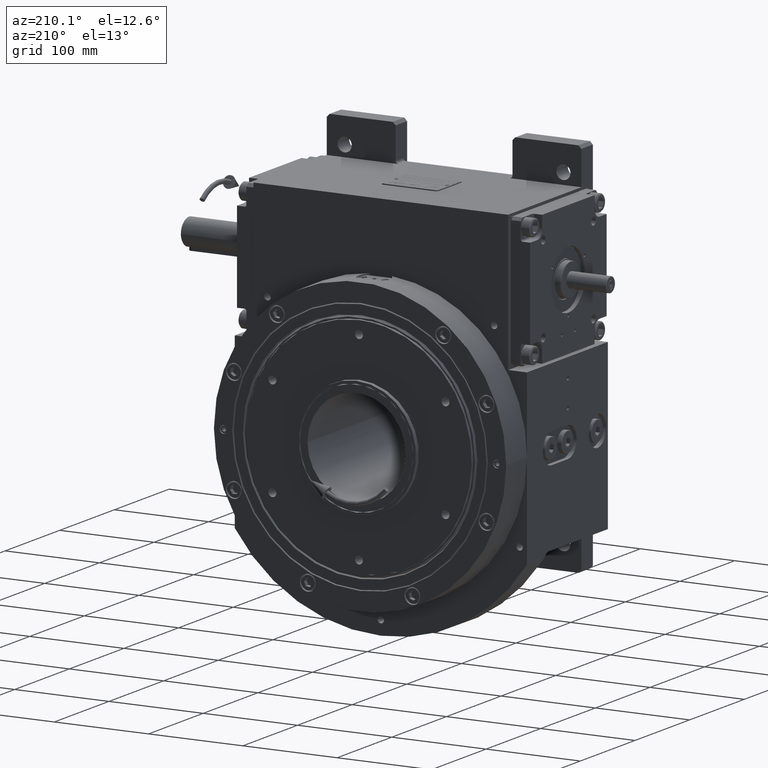
[diagram: clean part render]
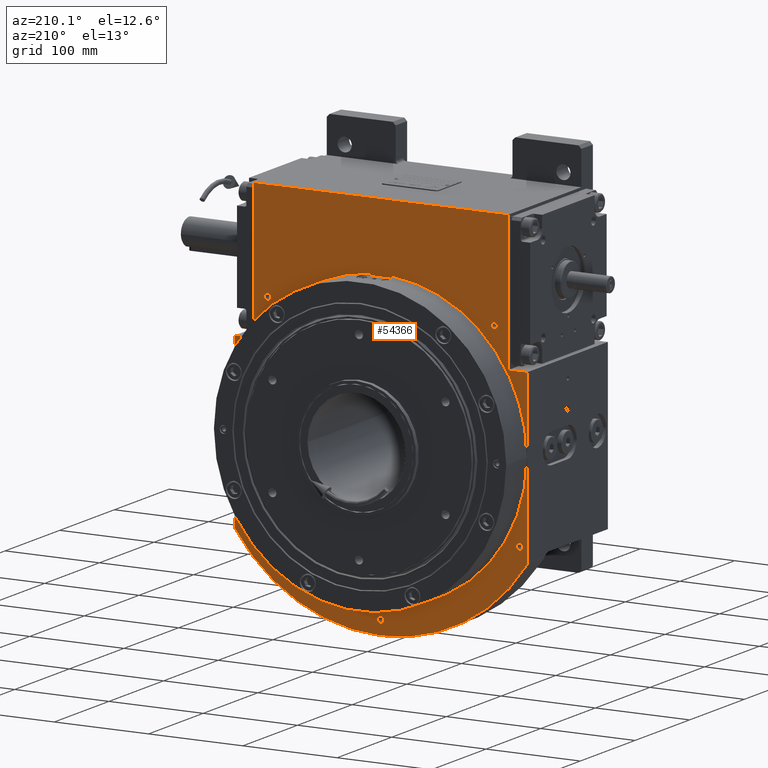
[diagram: same view with one face highlighted and labeled with its STEP entity id]
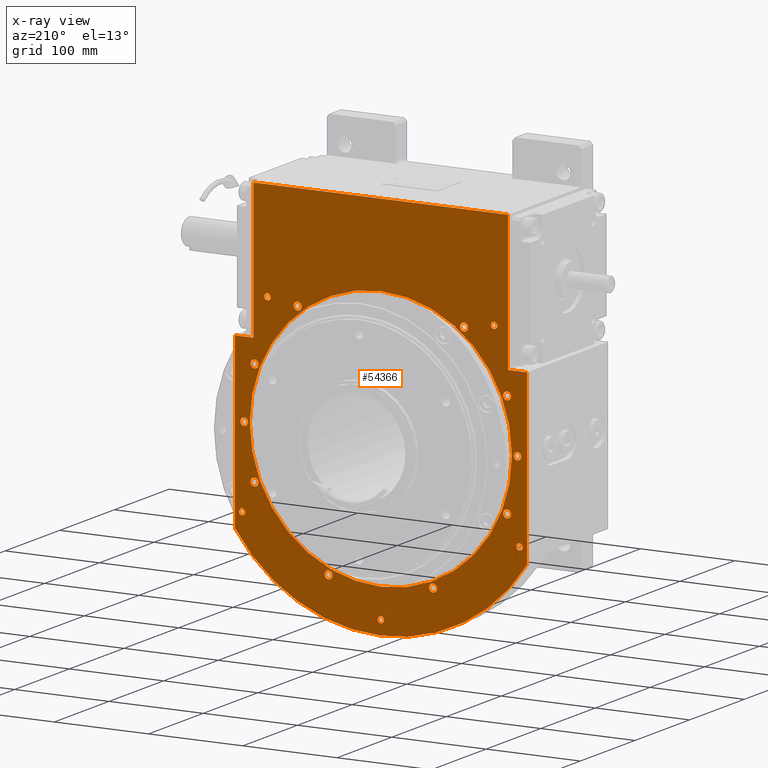
[diagram: x-ray of the same camera — body ghosted, the highlighted face saturated]
A machine part, auxiliary view. The second image highlights one B-rep face of the part: STEP entity #54366.
The next image is the same camera in x-ray: the body ghosted, the highlighted face saturated — about 0% of this face is hidden behind the body in this view.
In plain terms, the highlighted planar face has unit normal (0, 1, 0).
Its self-contained STEP definition (entity closure, byte-faithful):
#169 = DIRECTION ( 'NONE',  ( 0.000000000000000000, 1.000000000000000000, 0.000000000000000000 ) ) ;
#229 = VERTEX_POINT ( 'NONE', #6457 ) ;
#339 = VERTEX_POINT ( 'NONE', #39616 ) ;
#519 = DIRECTION ( 'NONE',  ( 0.000000000000000000, 1.000000000000000000, 0.000000000000000000 ) ) ;
#549 = ORIENTED_EDGE ( 'NONE', *, *, #27029, .F. ) ;
#557 = CARTESIAN_POINT ( 'NONE',  ( 120.2081528016999954, 75.00000000000000000, 120.2081528016999954 ) ) ;
#601 = CIRCLE ( 'NONE', #40042, 3.400000000000000355 ) ;
#894 = EDGE_LOOP ( 'NONE', ( #55276, #8784, #64744, #3092, #40445, #50126, #20085, #43939 ) ) ;
#942 = DIRECTION ( 'NONE',  ( 1.000000000000000000, 0.000000000000000000, 0.000000000000000000 ) ) ;
#1047 = VERTEX_POINT ( 'NONE', #5918 ) ;
#1056 = CARTESIAN_POINT ( 'NONE',  ( -123.6081528017000011, 75.00000000000000000, 120.2081528016999954 ) ) ;
#1286 = VERTEX_POINT ( 'NONE', #49334 ) ;
#1569 = EDGE_CURVE ( 'NONE', #41157, #9382, #41211, .T. ) ;
#1776 = DIRECTION ( 'NONE',  ( 0.000000000000000000, 1.000000000000000000, 0.000000000000000000 ) ) ;
#2160 = AXIS2_PLACEMENT_3D ( 'NONE', #57340, #169, #59419 ) ;
#2404 = CIRCLE ( 'NONE', #24963, 139.0000000000000000 ) ;
#2480 = AXIS2_PLACEMENT_3D ( 'NONE', #17804, #45642, #28410 ) ;
#2782 = VERTEX_POINT ( 'NONE', #13228 ) ;
#2892 = DIRECTION ( 'NONE',  ( 0.000000000000000000, 1.000000000000000000, 0.000000000000000000 ) ) ;
#3092 = ORIENTED_EDGE ( 'NONE', *, *, #64364, .T. ) ;
#3110 = EDGE_CURVE ( 'NONE', #5007, #55663, #6441, .T. ) ;
#3144 = CARTESIAN_POINT ( 'NONE',  ( -138.2125322140999799, 75.00000000000000000, -55.48909769294000682 ) ) ;
#3340 = CARTESIAN_POINT ( 'NONE',  ( 145.0000000000000000, 75.00000000000000000, -3.999999999999992450 ) ) ;
#3414 = EDGE_LOOP ( 'NONE', ( #57257, #13806 ) ) ;
#3510 = CARTESIAN_POINT ( 'NONE',  ( 143.8243186434000052, 75.00000000000000000, -85.00000000000000000 ) ) ;
#3854 = FACE_BOUND ( 'NONE', #29419, .T. ) ;
#3929 = DIRECTION ( 'NONE',  ( 0.000000000000000000, 1.000000000000000000, 0.000000000000000000 ) ) ;
#4145 = CARTESIAN_POINT ( 'NONE',  ( 155.0000000000000000, 75.00000000000000000, -100.9950493836000049 ) ) ;
#4486 = EDGE_CURVE ( 'NONE', #17450, #1286, #25620, .T. ) ;
#4567 = DIRECTION ( 'NONE',  ( 1.000000000000000000, 0.000000000000000000, 0.000000000000000000 ) ) ;
#4591 = AXIS2_PLACEMENT_3D ( 'NONE', #32025, #16843, #21455 ) ;
#4647 = DIRECTION ( 'NONE',  ( -1.000000000000000000, 0.000000000000000000, 0.000000000000000000 ) ) ;
#5007 = VERTEX_POINT ( 'NONE', #55927 ) ;
#5167 = AXIS2_PLACEMENT_3D ( 'NONE', #557, #22112, #17161 ) ;
#5509 = AXIS2_PLACEMENT_3D ( 'NONE', #63689, #519, #22079 ) ;
#5762 = LINE ( 'NONE', #55169, #46938 ) ;
#5845 = AXIS2_PLACEMENT_3D ( 'NONE', #54859, #49913, #42888 ) ;
#5880 = CARTESIAN_POINT ( 'NONE',  ( 133.9625322141000083, 75.00000000000000000, 55.48909769294000682 ) ) ;
#5918 = CARTESIAN_POINT ( 'NONE',  ( -3.399999999999999911, 75.00000000000000000, -170.0000000000000000 ) ) ;
#5958 = ORIENTED_EDGE ( 'NONE', *, *, #20937, .F. ) ;
#5967 = ORIENTED_EDGE ( 'NONE', *, *, #42461, .F. ) ;
#5994 = CARTESIAN_POINT ( 'NONE',  ( -135.0000000000000000, 75.00000000000000000, 226.0000000000000000 ) ) ;
#6441 = CIRCLE ( 'NONE', #7551, 4.250000000000003553 ) ;
#6457 = CARTESIAN_POINT ( 'NONE',  ( 84.02040720626000336, 75.00000000000000000, 115.0362343421999896 ) ) ;
#6573 = VERTEX_POINT ( 'NONE', #60400 ) ;
#7053 = CARTESIAN_POINT ( 'NONE',  ( -133.9625322141000083, 75.00000000000000000, 55.48909769294000682 ) ) ;
#7284 = VERTEX_POINT ( 'NONE', #10900 ) ;
#7383 = CIRCLE ( 'NONE', #5167, 3.400000000000000355 ) ;
#7551 = AXIS2_PLACEMENT_3D ( 'NONE', #7053, #1776, #23335 ) ;
#7700 = DIRECTION ( 'NONE',  ( 0.000000000000000000, 1.000000000000000000, 0.000000000000000000 ) ) ;
#7832 = AXIS2_PLACEMENT_3D ( 'NONE', #37570, #32623, #16752 ) ;
#7991 = DIRECTION ( 'NONE',  ( 1.000000000000000000, 0.000000000000000000, 0.000000000000000000 ) ) ;
#8227 = ORIENTED_EDGE ( 'NONE', *, *, #22222, .F. ) ;
#8347 = CARTESIAN_POINT ( 'NONE',  ( 155.0000000000000000, 75.00000000000000000, 80.00000000000000000 ) ) ;
#8525 = AXIS2_PLACEMENT_3D ( 'NONE', #69021, #20726, #42223 ) ;
#8580 = CIRCLE ( 'NONE', #26598, 185.0000000000000000 ) ;
#8784 = ORIENTED_EDGE ( 'NONE', *, *, #27801, .T. ) ;
#8971 = CIRCLE ( 'NONE', #25910, 4.249999999999996447 ) ;
#9130 = DIRECTION ( 'NONE',  ( 1.000000000000000000, 0.000000000000000000, 0.000000000000000000 ) ) ;
#9382 = VERTEX_POINT ( 'NONE', #47440 ) ;
#9511 = DIRECTION ( 'NONE',  ( 1.000000000000000000, 0.000000000000000000, 0.000000000000000000 ) ) ;
#9529 = AXIS2_PLACEMENT_3D ( 'NONE', #31440, #36379, #19842 ) ;
#9569 = EDGE_CURVE ( 'NONE', #2782, #41176, #11781, .T. ) ;
#9732 = ORIENTED_EDGE ( 'NONE', *, *, #21274, .F. ) ;
#10166 = ORIENTED_EDGE ( 'NONE', *, *, #65366, .F. ) ;
#10532 = CARTESIAN_POINT ( 'NONE',  ( 138.2125322140999799, 75.00000000000000000, -55.48909769294000682 ) ) ;
#10575 = EDGE_LOOP ( 'NONE', ( #52198, #18833 ) ) ;
#10652 = EDGE_CURVE ( 'NONE', #41176, #60439, #38483, .T. ) ;
#10900 = CARTESIAN_POINT ( 'NONE',  ( -129.7125322141000083, 75.00000000000000000, -55.48909769294000682 ) ) ;
#11033 = CARTESIAN_POINT ( 'NONE',  ( 1.702259050814821084E-14, 75.00000000000000000, -139.0000000000000000 ) ) ;
#11062 = VECTOR ( 'NONE', #58583, 1000.000000000000000 ) ;
#11128 = EDGE_CURVE ( 'NONE', #49337, #65194, #7383, .T. ) ;
#11180 = ORIENTED_EDGE ( 'NONE', *, *, #32130, .F. ) ;
#11206 = AXIS2_PLACEMENT_3D ( 'NONE', #14805, #36327, #9511 ) ;
#11781 = LINE ( 'NONE', #22752, #32947 ) ;
#12055 = DIRECTION ( 'NONE',  ( 1.000000000000000000, 0.000000000000000000, 0.000000000000000000 ) ) ;
#12202 = EDGE_LOOP ( 'NONE', ( #8227, #32689 ) ) ;
#12414 = EDGE_CURVE ( 'NONE', #23166, #23541, #67076, .T. ) ;
#12592 = ORIENTED_EDGE ( 'NONE', *, *, #45523, .F. ) ;
#12624 = AXIS2_PLACEMENT_3D ( 'NONE', #35174, #45065, #7991 ) ;
#13054 = DIRECTION ( 'NONE',  ( 0.000000000000000000, 1.000000000000000000, 0.000000000000000000 ) ) ;
#13228 = CARTESIAN_POINT ( 'NONE',  ( -135.0000000000000000, 75.00000000000000000, 80.00000000000000000 ) ) ;
#13660 = DIRECTION ( 'NONE',  ( 0.8378378378378310565, 0.000000000000000000, -0.5459191858574200529 ) ) ;
#13765 = FACE_BOUND ( 'NONE', #36674, .T. ) ;
#13806 = ORIENTED_EDGE ( 'NONE', *, *, #12414, .F. ) ;
#13824 = VERTEX_POINT ( 'NONE', #56920 ) ;
#14459 = VERTEX_POINT ( 'NONE', #25477 ) ;
#14549 = CIRCLE ( 'NONE', #2160, 4.250000000000003553 ) ;
#14665 = CIRCLE ( 'NONE', #7832, 3.999999999999992450 ) ;
#14805 = CARTESIAN_POINT ( 'NONE',  ( 0.000000000000000000, 75.00000000000000000, 0.000000000000000000 ) ) ;
#14896 = CIRCLE ( 'NONE', #5845, 3.399999999999999911 ) ;
#15257 = CARTESIAN_POINT ( 'NONE',  ( 133.9625322141000083, 75.00000000000000000, -55.48909769294000682 ) ) ;
#15273 = CARTESIAN_POINT ( 'NONE',  ( -147.2243186433999824, 75.00000000000000000, -85.00000000000000000 ) ) ;
#15282 = EDGE_CURVE ( 'NONE', #65194, #49337, #601, .T. ) ;
#15394 = CARTESIAN_POINT ( 'NONE',  ( -133.9625322141000083, 75.00000000000000000, -55.48909769294000682 ) ) ;
#15881 = CARTESIAN_POINT ( 'NONE',  ( 88.27040720626000336, 75.00000000000000000, 115.0362343421999896 ) ) ;
#16438 = CARTESIAN_POINT ( 'NONE',  ( 145.0000000000000000, 75.00000000000000000, 3.999999999999992450 ) ) ;
#16571 = DIRECTION ( 'NONE',  ( 0.000000000000000000, 1.000000000000000000, 0.000000000000000000 ) ) ;
#16752 = DIRECTION ( 'NONE',  ( 0.000000000000000000, 0.000000000000000000, 1.000000000000000000 ) ) ;
#16843 = DIRECTION ( 'NONE',  ( 0.000000000000000000, 1.000000000000000000, 0.000000000000000000 ) ) ;
#16861 = DIRECTION ( 'NONE',  ( -1.000000000000000000, 0.000000000000000000, 0.000000000000000000 ) ) ;
#16871 = CIRCLE ( 'NONE', #4591, 3.399999999999986144 ) ;
#17142 = EDGE_CURVE ( 'NONE', #23541, #23166, #55836, .T. ) ;
#17161 = DIRECTION ( 'NONE',  ( -1.000000000000000000, 0.000000000000000000, 0.000000000000000000 ) ) ;
#17263 = AXIS2_PLACEMENT_3D ( 'NONE', #5880, #65866, #16861 ) ;
#17314 = DIRECTION ( 'NONE',  ( -1.000000000000000000, 0.000000000000000000, 0.000000000000000000 ) ) ;
#17450 = VERTEX_POINT ( 'NONE', #3510 ) ;
#17514 = CARTESIAN_POINT ( 'NONE',  ( -155.0000000000000000, 75.00000000000000000, -100.9950493836000049 ) ) ;
#17695 = VERTEX_POINT ( 'NONE', #23263 ) ;
#17804 = CARTESIAN_POINT ( 'NONE',  ( -147.2243186433999824, 75.00000000000000000, -85.00000000000000000 ) ) ;
#18833 = ORIENTED_EDGE ( 'NONE', *, *, #26561, .F. ) ;
#18866 = DIRECTION ( 'NONE',  ( 0.000000000000000000, 1.000000000000000000, 0.000000000000000000 ) ) ;
#19075 = FACE_BOUND ( 'NONE', #3414, .T. ) ;
#19225 = CARTESIAN_POINT ( 'NONE',  ( -55.48909769294000682, 75.00000000000000000, -133.9625322141000083 ) ) ;
#19310 = EDGE_LOOP ( 'NONE', ( #38912, #69557 ) ) ;
#19485 = CARTESIAN_POINT ( 'NONE',  ( -133.9625322141000083, 75.00000000000000000, -55.48909769294000682 ) ) ;
#19652 = EDGE_LOOP ( 'NONE', ( #549, #10166 ) ) ;
#19842 = DIRECTION ( 'NONE',  ( -1.000000000000000000, 0.000000000000000000, 0.000000000000000000 ) ) ;
#20085 = ORIENTED_EDGE ( 'NONE', *, *, #10652, .T. ) ;
#20091 = LINE ( 'NONE', #68042, #58483 ) ;
#20121 = FACE_OUTER_BOUND ( 'NONE', #894, .T. ) ;
#20162 = AXIS2_PLACEMENT_3D ( 'NONE', #39920, #34649, #56136 ) ;
#20458 = FACE_BOUND ( 'NONE', #19310, .T. ) ;
#20594 = DIRECTION ( 'NONE',  ( 0.000000000000000000, 1.000000000000000000, 0.000000000000000000 ) ) ;
#20670 = DIRECTION ( 'NONE',  ( 0.000000000000000000, 1.000000000000000000, 0.000000000000000000 ) ) ;
#20726 = DIRECTION ( 'NONE',  ( 0.000000000000000000, 1.000000000000000000, 0.000000000000000000 ) ) ;
#20893 = CARTESIAN_POINT ( 'NONE',  ( -145.0000000000000000, 75.00000000000000000, 0.000000000000000000 ) ) ;
#20911 = DIRECTION ( 'NONE',  ( 1.000000000000000000, 0.000000000000000000, 0.000000000000000000 ) ) ;
#20937 = EDGE_CURVE ( 'NONE', #1047, #29810, #57334, .T. ) ;
#20953 = CARTESIAN_POINT ( 'NONE',  ( -133.9625322141000083, 75.00000000000000000, 55.48909769294000682 ) ) ;
#21274 = EDGE_CURVE ( 'NONE', #57378, #27210, #8971, .T. ) ;
#21318 = ORIENTED_EDGE ( 'NONE', *, *, #57725, .F. ) ;
#21455 = DIRECTION ( 'NONE',  ( 1.000000000000000000, 0.000000000000000000, 0.000000000000000000 ) ) ;
#21756 = AXIS2_PLACEMENT_3D ( 'NONE', #15881, #69120, #21871 ) ;
#21871 = DIRECTION ( 'NONE',  ( 1.000000000000000000, 0.000000000000000000, 0.000000000000000000 ) ) ;
#21873 = VERTEX_POINT ( 'NONE', #4145 ) ;
#22079 = DIRECTION ( 'NONE',  ( -1.000000000000000000, 0.000000000000000000, 0.000000000000000000 ) ) ;
#22112 = DIRECTION ( 'NONE',  ( 0.000000000000000000, 1.000000000000000000, 0.000000000000000000 ) ) ;
#22222 = EDGE_CURVE ( 'NONE', #22521, #45093, #57282, .T. ) ;
#22521 = VERTEX_POINT ( 'NONE', #1056 ) ;
#22589 = DIRECTION ( 'NONE',  ( 0.000000000000000000, 0.000000000000000000, 1.000000000000000000 ) ) ;
#22739 = EDGE_CURVE ( 'NONE', #17695, #6573, #20091, .T. ) ;
#22752 = CARTESIAN_POINT ( 'NONE',  ( -135.0000000000000000, 75.00000000000000000, 80.00000000000000000 ) ) ;
#22770 = VERTEX_POINT ( 'NONE', #3144 ) ;
#22930 = AXIS2_PLACEMENT_3D ( 'NONE', #33893, #13054, #17314 ) ;
#23100 = VERTEX_POINT ( 'NONE', #55976 ) ;
#23166 = VERTEX_POINT ( 'NONE', #33798 ) ;
#23263 = CARTESIAN_POINT ( 'NONE',  ( 135.0000000000000000, 75.00000000000000000, 80.00000000000000000 ) ) ;
#23335 = DIRECTION ( 'NONE',  ( -1.000000000000000000, 0.000000000000000000, 0.000000000000000000 ) ) ;
#23541 = VERTEX_POINT ( 'NONE', #27044 ) ;
#23978 = CARTESIAN_POINT ( 'NONE',  ( 55.48909769294000682, 75.00000000000000000, -133.9625322141000083 ) ) ;
#24216 = CARTESIAN_POINT ( 'NONE',  ( 138.2125322140999799, 75.00000000000000000, 55.48909769294000682 ) ) ;
#24963 = AXIS2_PLACEMENT_3D ( 'NONE', #27884, #7700, #22589 ) ;
#25124 = CARTESIAN_POINT ( 'NONE',  ( 92.52040720626000336, 75.00000000000000000, 115.0362343421999896 ) ) ;
#25227 = ORIENTED_EDGE ( 'NONE', *, *, #56651, .F. ) ;
#25417 = FACE_BOUND ( 'NONE', #19652, .T. ) ;
#25467 = AXIS2_PLACEMENT_3D ( 'NONE', #20893, #3929, #46992 ) ;
#25477 = CARTESIAN_POINT ( 'NONE',  ( 129.7125322141000083, 75.00000000000000000, -55.48909769294000682 ) ) ;
#25620 = CIRCLE ( 'NONE', #65002, 3.399999999999986144 ) ;
#25910 = AXIS2_PLACEMENT_3D ( 'NONE', #19225, #18866, #40708 ) ;
#25918 = DIRECTION ( 'NONE',  ( 0.000000000000000000, 1.000000000000000000, 0.000000000000000000 ) ) ;
#26211 = VERTEX_POINT ( 'NONE', #24216 ) ;
#26243 = DIRECTION ( 'NONE',  ( 1.000000000000000000, 0.000000000000000000, 0.000000000000000000 ) ) ;
#26300 = VERTEX_POINT ( 'NONE', #11033 ) ;
#26475 = CARTESIAN_POINT ( 'NONE',  ( -145.0000000000000000, 75.00000000000000000, 0.000000000000000000 ) ) ;
#26523 = VECTOR ( 'NONE', #50348, 1000.000000000000000 ) ;
#26561 = EDGE_CURVE ( 'NONE', #55663, #5007, #46632, .T. ) ;
#26598 = AXIS2_PLACEMENT_3D ( 'NONE', #40457, #61975, #13660 ) ;
#26763 = CARTESIAN_POINT ( 'NONE',  ( 133.9625322141000083, 75.00000000000000000, 55.48909769294000682 ) ) ;
#27029 = EDGE_CURVE ( 'NONE', #229, #27100, #34312, .T. ) ;
#27044 = CARTESIAN_POINT ( 'NONE',  ( -145.0000000000000000, 75.00000000000000000, 3.999999999999992450 ) ) ;
#27100 = VERTEX_POINT ( 'NONE', #25124 ) ;
#27210 = VERTEX_POINT ( 'NONE', #49037 ) ;
#27439 = DIRECTION ( 'NONE',  ( 0.000000000000000000, 1.000000000000000000, 0.000000000000000000 ) ) ;
#27618 = DIRECTION ( 'NONE',  ( 0.000000000000000000, 1.000000000000000000, 0.000000000000000000 ) ) ;
#27657 = ORIENTED_EDGE ( 'NONE', *, *, #11128, .F. ) ;
#27801 = EDGE_CURVE ( 'NONE', #6573, #21873, #34498, .T. ) ;
#27829 = CARTESIAN_POINT ( 'NONE',  ( -116.8081528016999897, 75.00000000000000000, 120.2081528016999954 ) ) ;
#27884 = CARTESIAN_POINT ( 'NONE',  ( 0.000000000000000000, 75.00000000000000000, -6.992960125521008625E-15 ) ) ;
#27955 = DIRECTION ( 'NONE',  ( 0.000000000000000000, 1.000000000000000000, 0.000000000000000000 ) ) ;
#28050 = DIRECTION ( 'NONE',  ( 0.000000000000000000, 0.000000000000000000, -1.000000000000000000 ) ) ;
#28317 = AXIS2_PLACEMENT_3D ( 'NONE', #15257, #68855, #20911 ) ;
#28410 = DIRECTION ( 'NONE',  ( 1.000000000000000000, 0.000000000000000000, 0.000000000000000000 ) ) ;
#28820 = CIRCLE ( 'NONE', #50182, 4.249999999999996447 ) ;
#29419 = EDGE_LOOP ( 'NONE', ( #41160, #36452 ) ) ;
#29600 = VERTEX_POINT ( 'NONE', #3340 ) ;
#29810 = VERTEX_POINT ( 'NONE', #48792 ) ;
#30392 = AXIS2_PLACEMENT_3D ( 'NONE', #61039, #27955, #12055 ) ;
#30570 = DIRECTION ( 'NONE',  ( 0.000000000000000000, 0.000000000000000000, 1.000000000000000000 ) ) ;
#30694 = FACE_BOUND ( 'NONE', #57380, .T. ) ;
#30846 = EDGE_CURVE ( 'NONE', #60439, #17695, #5762, .T. ) ;
#30851 = DIRECTION ( 'NONE',  ( 0.000000000000000000, 1.000000000000000000, 0.000000000000000000 ) ) ;
#30894 = CARTESIAN_POINT ( 'NONE',  ( -135.0000000000000000, 75.00000000000000000, 226.0000000000000000 ) ) ;
#30897 = AXIS2_PLACEMENT_3D ( 'NONE', #20953, #20594, #26243 ) ;
#30926 = DIRECTION ( 'NONE',  ( 0.000000000000000000, 1.000000000000000000, 0.000000000000000000 ) ) ;
#31245 = EDGE_LOOP ( 'NONE', ( #52652, #39386 ) ) ;
#31440 = CARTESIAN_POINT ( 'NONE',  ( 88.27040720626000336, 75.00000000000000000, 115.0362343421999896 ) ) ;
#31606 = ORIENTED_EDGE ( 'NONE', *, *, #45850, .F. ) ;
#32025 = CARTESIAN_POINT ( 'NONE',  ( 147.2243186433999824, 75.00000000000000000, -85.00000000000000000 ) ) ;
#32130 = EDGE_CURVE ( 'NONE', #26211, #66977, #61715, .T. ) ;
#32623 = DIRECTION ( 'NONE',  ( 0.000000000000000000, 1.000000000000000000, 0.000000000000000000 ) ) ;
#32689 = ORIENTED_EDGE ( 'NONE', *, *, #40595, .F. ) ;
#32947 = VECTOR ( 'NONE', #44597, 1000.000000000000000 ) ;
#33781 = EDGE_CURVE ( 'NONE', #9382, #41157, #14549, .T. ) ;
#33798 = CARTESIAN_POINT ( 'NONE',  ( -145.0000000000000000, 75.00000000000000000, -3.999999999999992450 ) ) ;
#33893 = CARTESIAN_POINT ( 'NONE',  ( 133.9625322141000083, 75.00000000000000000, -55.48909769294000682 ) ) ;
#33998 = VECTOR ( 'NONE', #63806, 1000.000000000000000 ) ;
#34312 = CIRCLE ( 'NONE', #9529, 4.250000000000003553 ) ;
#34498 = LINE ( 'NONE', #8347, #26523 ) ;
#34649 = DIRECTION ( 'NONE',  ( 0.000000000000000000, 1.000000000000000000, 0.000000000000000000 ) ) ;
#34995 = AXIS2_PLACEMENT_3D ( 'NONE', #15273, #52987, #4647 ) ;
#35105 = EDGE_LOOP ( 'NONE', ( #43025, #39636 ) ) ;
#35136 = CIRCLE ( 'NONE', #2480, 3.399999999999986144 ) ;
#35174 = CARTESIAN_POINT ( 'NONE',  ( 55.48909769294000682, 75.00000000000000000, -133.9625322141000083 ) ) ;
#35284 = FACE_BOUND ( 'NONE', #38258, .T. ) ;
#35316 = EDGE_CURVE ( 'NONE', #41826, #13824, #40618, .T. ) ;
#35843 = EDGE_CURVE ( 'NONE', #1286, #17450, #16871, .T. ) ;
#35983 = FACE_BOUND ( 'NONE', #68380, .T. ) ;
#36211 = DIRECTION ( 'NONE',  ( -1.000000000000000000, 0.000000000000000000, 0.000000000000000000 ) ) ;
#36327 = DIRECTION ( 'NONE',  ( -0.000000000000000000, 1.000000000000000000, 0.000000000000000000 ) ) ;
#36379 = DIRECTION ( 'NONE',  ( 0.000000000000000000, 1.000000000000000000, 0.000000000000000000 ) ) ;
#36418 = DIRECTION ( 'NONE',  ( 0.000000000000000000, 1.000000000000000000, 0.000000000000000000 ) ) ;
#36452 = ORIENTED_EDGE ( 'NONE', *, *, #45218, .F. ) ;
#36544 = CARTESIAN_POINT ( 'NONE',  ( 0.000000000000000000, 75.00000000000000000, -6.992960125521008625E-15 ) ) ;
#36674 = EDGE_LOOP ( 'NONE', ( #21318, #11180 ) ) ;
#37146 = CARTESIAN_POINT ( 'NONE',  ( -150.6243186434000165, 75.00000000000000000, -85.00000000000000000 ) ) ;
#37440 = ORIENTED_EDGE ( 'NONE', *, *, #58047, .F. ) ;
#37468 = DIRECTION ( 'NONE',  ( -1.000000000000000000, 0.000000000000000000, 0.000000000000000000 ) ) ;
#37526 = DIRECTION ( 'NONE',  ( 1.000000000000000000, 0.000000000000000000, 0.000000000000000000 ) ) ;
#37570 = CARTESIAN_POINT ( 'NONE',  ( 145.0000000000000000, 75.00000000000000000, 0.000000000000000000 ) ) ;
#38258 = EDGE_LOOP ( 'NONE', ( #5958, #12592 ) ) ;
#38483 = LINE ( 'NONE', #5994, #11062 ) ;
#38502 = AXIS2_PLACEMENT_3D ( 'NONE', #36544, #20670, #30570 ) ;
#38912 = ORIENTED_EDGE ( 'NONE', *, *, #46530, .F. ) ;
#39368 = ORIENTED_EDGE ( 'NONE', *, *, #43965, .F. ) ;
#39386 = ORIENTED_EDGE ( 'NONE', *, *, #35843, .F. ) ;
#39616 = CARTESIAN_POINT ( 'NONE',  ( 59.73909769293999972, 75.00000000000000000, -133.9625322141000083 ) ) ;
#39636 = ORIENTED_EDGE ( 'NONE', *, *, #33781, .F. ) ;
#39716 = CIRCLE ( 'NONE', #62220, 4.250000000000003553 ) ;
#39920 = CARTESIAN_POINT ( 'NONE',  ( -120.2081528016999954, 75.00000000000000000, 120.2081528016999954 ) ) ;
#40042 = AXIS2_PLACEMENT_3D ( 'NONE', #42466, #30851, #37526 ) ;
#40198 = ORIENTED_EDGE ( 'NONE', *, *, #15282, .F. ) ;
#40445 = ORIENTED_EDGE ( 'NONE', *, *, #42183, .T. ) ;
#40457 = CARTESIAN_POINT ( 'NONE',  ( 0.000000000000000000, 75.00000000000000000, 0.000000000000000000 ) ) ;
#40557 = FACE_BOUND ( 'NONE', #57415, .T. ) ;
#40595 = EDGE_CURVE ( 'NONE', #45093, #22521, #54017, .T. ) ;
#40618 = CIRCLE ( 'NONE', #34995, 3.399999999999986144 ) ;
#40708 = DIRECTION ( 'NONE',  ( 1.000000000000000000, 0.000000000000000000, 0.000000000000000000 ) ) ;
#40710 = CIRCLE ( 'NONE', #38502, 139.0000000000000000 ) ;
#41029 = EDGE_LOOP ( 'NONE', ( #27657, #40198 ) ) ;
#41157 = VERTEX_POINT ( 'NONE', #67915 ) ;
#41160 = ORIENTED_EDGE ( 'NONE', *, *, #68316, .F. ) ;
#41176 = VERTEX_POINT ( 'NONE', #30894 ) ;
#41211 = CIRCLE ( 'NONE', #8525, 4.250000000000003553 ) ;
#41239 = EDGE_CURVE ( 'NONE', #61539, #29600, #14665, .T. ) ;
#41270 = FACE_BOUND ( 'NONE', #41029, .T. ) ;
#41607 = FACE_BOUND ( 'NONE', #10575, .T. ) ;
#41826 = VERTEX_POINT ( 'NONE', #37146 ) ;
#41895 = ORIENTED_EDGE ( 'NONE', *, *, #41239, .F. ) ;
#42183 = EDGE_CURVE ( 'NONE', #66052, #2782, #58186, .T. ) ;
#42223 = DIRECTION ( 'NONE',  ( -1.000000000000000000, 0.000000000000000000, 0.000000000000000000 ) ) ;
#42461 = EDGE_CURVE ( 'NONE', #26300, #44155, #2404, .T. ) ;
#42466 = CARTESIAN_POINT ( 'NONE',  ( 120.2081528016999954, 75.00000000000000000, 120.2081528016999954 ) ) ;
#42888 = DIRECTION ( 'NONE',  ( 1.000000000000000000, 0.000000000000000000, 0.000000000000000000 ) ) ;
#43025 = ORIENTED_EDGE ( 'NONE', *, *, #1569, .F. ) ;
#43939 = ORIENTED_EDGE ( 'NONE', *, *, #30846, .T. ) ;
#43965 = EDGE_CURVE ( 'NONE', #22770, #7284, #39716, .T. ) ;
#44155 = VERTEX_POINT ( 'NONE', #48511 ) ;
#44161 = CIRCLE ( 'NONE', #12624, 4.249999999999996447 ) ;
#44251 = CIRCLE ( 'NONE', #17263, 4.250000000000003553 ) ;
#44597 = DIRECTION ( 'NONE',  ( 0.000000000000000000, 0.000000000000000000, 1.000000000000000000 ) ) ;
#45065 = DIRECTION ( 'NONE',  ( 0.000000000000000000, 1.000000000000000000, 0.000000000000000000 ) ) ;
#45093 = VERTEX_POINT ( 'NONE', #27829 ) ;
#45218 = EDGE_CURVE ( 'NONE', #339, #23100, #44161, .T. ) ;
#45523 = EDGE_CURVE ( 'NONE', #29810, #1047, #14896, .T. ) ;
#45642 = DIRECTION ( 'NONE',  ( 0.000000000000000000, 1.000000000000000000, 0.000000000000000000 ) ) ;
#45850 = EDGE_CURVE ( 'NONE', #29600, #61539, #67911, .T. ) ;
#46530 = EDGE_CURVE ( 'NONE', #14459, #59552, #57811, .T. ) ;
#46550 = CARTESIAN_POINT ( 'NONE',  ( 116.8081528016999897, 75.00000000000000000, 120.2081528016999954 ) ) ;
#46557 = FACE_BOUND ( 'NONE', #56999, .T. ) ;
#46632 = CIRCLE ( 'NONE', #30897, 4.250000000000003553 ) ;
#46783 = DIRECTION ( 'NONE',  ( -1.000000000000000000, 0.000000000000000000, 0.000000000000000000 ) ) ;
#46938 = VECTOR ( 'NONE', #28050, 1000.000000000000000 ) ;
#46992 = DIRECTION ( 'NONE',  ( 0.000000000000000000, 0.000000000000000000, 1.000000000000000000 ) ) ;
#47405 = DIRECTION ( 'NONE',  ( 0.000000000000000000, 0.000000000000000000, 1.000000000000000000 ) ) ;
#47440 = CARTESIAN_POINT ( 'NONE',  ( -84.02040720626000336, 75.00000000000000000, 115.0362343421999896 ) ) ;
#47653 = AXIS2_PLACEMENT_3D ( 'NONE', #62989, #53447, #46783 ) ;
#47971 = DIRECTION ( 'NONE',  ( 0.000000000000000000, 0.000000000000000000, 1.000000000000000000 ) ) ;
#48511 = CARTESIAN_POINT ( 'NONE',  ( 0.000000000000000000, 75.00000000000000000, 139.0000000000000000 ) ) ;
#48792 = CARTESIAN_POINT ( 'NONE',  ( 3.399999999999999911, 75.00000000000000000, -170.0000000000000000 ) ) ;
#49037 = CARTESIAN_POINT ( 'NONE',  ( -59.73909769293999972, 75.00000000000000000, -133.9625322141000083 ) ) ;
#49334 = CARTESIAN_POINT ( 'NONE',  ( 150.6243186434000165, 75.00000000000000000, -85.00000000000000000 ) ) ;
#49337 = VERTEX_POINT ( 'NONE', #46550 ) ;
#49913 = DIRECTION ( 'NONE',  ( 0.000000000000000000, 1.000000000000000000, 0.000000000000000000 ) ) ;
#50126 = ORIENTED_EDGE ( 'NONE', *, *, #9569, .T. ) ;
#50182 = AXIS2_PLACEMENT_3D ( 'NONE', #23978, #27618, #60364 ) ;
#50348 = DIRECTION ( 'NONE',  ( 0.000000000000000000, 0.000000000000000000, -1.000000000000000000 ) ) ;
#50819 = CIRCLE ( 'NONE', #28317, 4.250000000000003553 ) ;
#51138 = FACE_BOUND ( 'NONE', #31245, .T. ) ;
#51589 = CARTESIAN_POINT ( 'NONE',  ( -129.7125322141000083, 75.00000000000000000, 55.48909769294000682 ) ) ;
#52141 = CIRCLE ( 'NONE', #21756, 4.250000000000003553 ) ;
#52179 = FACE_BOUND ( 'NONE', #62658, .T. ) ;
#52198 = ORIENTED_EDGE ( 'NONE', *, *, #3110, .F. ) ;
#52439 = EDGE_CURVE ( 'NONE', #7284, #22770, #68128, .T. ) ;
#52598 = DIRECTION ( 'NONE',  ( 1.000000000000000000, 0.000000000000000000, 0.000000000000000000 ) ) ;
#52652 = ORIENTED_EDGE ( 'NONE', *, *, #4486, .F. ) ;
#52987 = DIRECTION ( 'NONE',  ( 0.000000000000000000, 1.000000000000000000, 0.000000000000000000 ) ) ;
#53447 = DIRECTION ( 'NONE',  ( 0.000000000000000000, 1.000000000000000000, 0.000000000000000000 ) ) ;
#54017 = CIRCLE ( 'NONE', #30392, 3.400000000000000355 ) ;
#54351 = AXIS2_PLACEMENT_3D ( 'NONE', #68569, #25918, #47405 ) ;
#54366 = ADVANCED_FACE ( 'NONE', ( #30694, #46557, #19075, #41270, #63456, #52179, #35284, #51138, #41607, #35983, #40557, #3854, #20458, #13765, #25417, #68421, #20121 ), #63107, .T. ) ;
#54859 = CARTESIAN_POINT ( 'NONE',  ( 0.000000000000000000, 75.00000000000000000, -170.0000000000000000 ) ) ;
#55169 = CARTESIAN_POINT ( 'NONE',  ( 135.0000000000000000, 75.00000000000000000, 226.0000000000000000 ) ) ;
#55251 = ORIENTED_EDGE ( 'NONE', *, *, #35316, .F. ) ;
#55276 = ORIENTED_EDGE ( 'NONE', *, *, #22739, .T. ) ;
#55400 = CARTESIAN_POINT ( 'NONE',  ( 123.6081528017000011, 75.00000000000000000, 120.2081528016999954 ) ) ;
#55663 = VERTEX_POINT ( 'NONE', #51589 ) ;
#55836 = CIRCLE ( 'NONE', #25467, 3.999999999999992450 ) ;
#55852 = EDGE_CURVE ( 'NONE', #59552, #14459, #50819, .T. ) ;
#55927 = CARTESIAN_POINT ( 'NONE',  ( -138.2125322140999799, 75.00000000000000000, 55.48909769294000682 ) ) ;
#55976 = CARTESIAN_POINT ( 'NONE',  ( 51.23909769293999972, 75.00000000000000000, -133.9625322141000083 ) ) ;
#56136 = DIRECTION ( 'NONE',  ( -1.000000000000000000, 0.000000000000000000, 0.000000000000000000 ) ) ;
#56651 = EDGE_CURVE ( 'NONE', #44155, #26300, #40710, .T. ) ;
#56920 = CARTESIAN_POINT ( 'NONE',  ( -143.8243186434000052, 75.00000000000000000, -85.00000000000000000 ) ) ;
#56985 = VERTEX_POINT ( 'NONE', #61144 ) ;
#56995 = EDGE_CURVE ( 'NONE', #13824, #41826, #35136, .T. ) ;
#56999 = EDGE_LOOP ( 'NONE', ( #41895, #31606 ) ) ;
#57257 = ORIENTED_EDGE ( 'NONE', *, *, #17142, .F. ) ;
#57282 = CIRCLE ( 'NONE', #20162, 3.400000000000000355 ) ;
#57334 = CIRCLE ( 'NONE', #5509, 3.399999999999999911 ) ;
#57340 = CARTESIAN_POINT ( 'NONE',  ( -88.27040720626000336, 75.00000000000000000, 115.0362343421999896 ) ) ;
#57368 = AXIS2_PLACEMENT_3D ( 'NONE', #19485, #2892, #52598 ) ;
#57378 = VERTEX_POINT ( 'NONE', #64278 ) ;
#57380 = EDGE_LOOP ( 'NONE', ( #25227, #5967 ) ) ;
#57415 = EDGE_LOOP ( 'NONE', ( #37440, #9732 ) ) ;
#57725 = EDGE_CURVE ( 'NONE', #66977, #26211, #44251, .T. ) ;
#57811 = CIRCLE ( 'NONE', #22930, 4.250000000000003553 ) ;
#58047 = EDGE_CURVE ( 'NONE', #27210, #57378, #64512, .T. ) ;
#58186 = LINE ( 'NONE', #65224, #60900 ) ;
#58483 = VECTOR ( 'NONE', #9130, 1000.000000000000000 ) ;
#58583 = DIRECTION ( 'NONE',  ( 1.000000000000000000, 0.000000000000000000, 0.000000000000000000 ) ) ;
#58625 = ORIENTED_EDGE ( 'NONE', *, *, #52439, .F. ) ;
#59419 = DIRECTION ( 'NONE',  ( 1.000000000000000000, 0.000000000000000000, 0.000000000000000000 ) ) ;
#59552 = VERTEX_POINT ( 'NONE', #10532 ) ;
#59823 = CARTESIAN_POINT ( 'NONE',  ( -155.0000000000000000, 75.00000000000000000, 80.00000000000000000 ) ) ;
#60364 = DIRECTION ( 'NONE',  ( -1.000000000000000000, 0.000000000000000000, 0.000000000000000000 ) ) ;
#60400 = CARTESIAN_POINT ( 'NONE',  ( 155.0000000000000000, 75.00000000000000000, 80.00000000000000000 ) ) ;
#60439 = VERTEX_POINT ( 'NONE', #62824 ) ;
#60900 = VECTOR ( 'NONE', #4567, 1000.000000000000000 ) ;
#61039 = CARTESIAN_POINT ( 'NONE',  ( -120.2081528016999954, 75.00000000000000000, 120.2081528016999954 ) ) ;
#61144 = CARTESIAN_POINT ( 'NONE',  ( -155.0000000000000000, 75.00000000000000000, -100.9950493836000049 ) ) ;
#61539 = VERTEX_POINT ( 'NONE', #16438 ) ;
#61715 = CIRCLE ( 'NONE', #63926, 4.250000000000003553 ) ;
#61975 = DIRECTION ( 'NONE',  ( 0.000000000000000000, 1.000000000000000000, 0.000000000000000000 ) ) ;
#62220 = AXIS2_PLACEMENT_3D ( 'NONE', #15394, #30926, #36211 ) ;
#62658 = EDGE_LOOP ( 'NONE', ( #55251, #66537 ) ) ;
#62709 = EDGE_CURVE ( 'NONE', #21873, #56985, #8580, .T. ) ;
#62824 = CARTESIAN_POINT ( 'NONE',  ( 135.0000000000000000, 75.00000000000000000, 226.0000000000000000 ) ) ;
#62989 = CARTESIAN_POINT ( 'NONE',  ( -55.48909769294000682, 75.00000000000000000, -133.9625322141000083 ) ) ;
#63107 = PLANE ( 'NONE',  #11206 ) ;
#63456 = FACE_BOUND ( 'NONE', #12202, .T. ) ;
#63689 = CARTESIAN_POINT ( 'NONE',  ( 0.000000000000000000, 75.00000000000000000, -170.0000000000000000 ) ) ;
#63806 = DIRECTION ( 'NONE',  ( 0.000000000000000000, 0.000000000000000000, 1.000000000000000000 ) ) ;
#63926 = AXIS2_PLACEMENT_3D ( 'NONE', #26763, #27439, #942 ) ;
#64278 = CARTESIAN_POINT ( 'NONE',  ( -51.23909769293999972, 75.00000000000000000, -133.9625322141000083 ) ) ;
#64364 = EDGE_CURVE ( 'NONE', #56985, #66052, #65812, .T. ) ;
#64512 = CIRCLE ( 'NONE', #47653, 4.249999999999996447 ) ;
#64744 = ORIENTED_EDGE ( 'NONE', *, *, #62709, .T. ) ;
#64790 = AXIS2_PLACEMENT_3D ( 'NONE', #26475, #16571, #47971 ) ;
#65002 = AXIS2_PLACEMENT_3D ( 'NONE', #68505, #36418, #37468 ) ;
#65194 = VERTEX_POINT ( 'NONE', #55400 ) ;
#65224 = CARTESIAN_POINT ( 'NONE',  ( -155.0000000000000000, 75.00000000000000000, 80.00000000000000000 ) ) ;
#65366 = EDGE_CURVE ( 'NONE', #27100, #229, #52141, .T. ) ;
#65812 = LINE ( 'NONE', #17514, #33998 ) ;
#65866 = DIRECTION ( 'NONE',  ( 0.000000000000000000, 1.000000000000000000, 0.000000000000000000 ) ) ;
#66052 = VERTEX_POINT ( 'NONE', #59823 ) ;
#66537 = ORIENTED_EDGE ( 'NONE', *, *, #56995, .F. ) ;
#66613 = CARTESIAN_POINT ( 'NONE',  ( 129.7125322141000083, 75.00000000000000000, 55.48909769294000682 ) ) ;
#66977 = VERTEX_POINT ( 'NONE', #66613 ) ;
#67076 = CIRCLE ( 'NONE', #64790, 3.999999999999992450 ) ;
#67911 = CIRCLE ( 'NONE', #54351, 3.999999999999992450 ) ;
#67915 = CARTESIAN_POINT ( 'NONE',  ( -92.52040720626000336, 75.00000000000000000, 115.0362343421999896 ) ) ;
#68042 = CARTESIAN_POINT ( 'NONE',  ( 135.0000000000000000, 75.00000000000000000, 80.00000000000000000 ) ) ;
#68128 = CIRCLE ( 'NONE', #57368, 4.250000000000003553 ) ;
#68316 = EDGE_CURVE ( 'NONE', #23100, #339, #28820, .T. ) ;
#68380 = EDGE_LOOP ( 'NONE', ( #39368, #58625 ) ) ;
#68421 = FACE_BOUND ( 'NONE', #35105, .T. ) ;
#68505 = CARTESIAN_POINT ( 'NONE',  ( 147.2243186433999824, 75.00000000000000000, -85.00000000000000000 ) ) ;
#68569 = CARTESIAN_POINT ( 'NONE',  ( 145.0000000000000000, 75.00000000000000000, 0.000000000000000000 ) ) ;
#68855 = DIRECTION ( 'NONE',  ( 0.000000000000000000, 1.000000000000000000, 0.000000000000000000 ) ) ;
#69021 = CARTESIAN_POINT ( 'NONE',  ( -88.27040720626000336, 75.00000000000000000, 115.0362343421999896 ) ) ;
#69120 = DIRECTION ( 'NONE',  ( 0.000000000000000000, 1.000000000000000000, 0.000000000000000000 ) ) ;
#69557 = ORIENTED_EDGE ( 'NONE', *, *, #55852, .F. ) ;